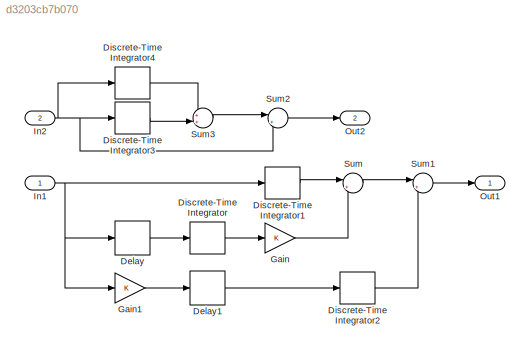
MODEL slx_d3203cb7b070
KIND model
CONFIG AbsTol = auto
CONFIG EnableMultiTasking = off
CONFIG FixedStep = auto
CONFIG MaxStep = auto
CONFIG MinStep = auto
CONFIG RelTol = 1e-3
CONFIG SampleTimeConstraint = Unconstrained
CONFIG SolverName = VariableStepAuto
CONFIG StartTime = 0.0
CONFIG StopTime = 10.0
BLOCK [Delay] Delay
  AttributesFormatString = %<BlockType>
  DelayLength = 1
  InitialCondition = 0
  InputPortMap = u0
BLOCK [Delay] Delay1
  AttributesFormatString = %<BlockType>
  DelayLength = 1
  InitialCondition = 0
  InputPortMap = u0
BLOCK [DiscreteIntegrator] Discrete-Time Integrator
  AttributesFormatString = %<BlockType>
  ICPrevOutput = DiscIntNeverNeededParam
  ICPrevScaledInput = DiscIntNeverNeededParam
  InitialConditionSetting = Auto
  SampleTime = -1
BLOCK [DiscreteIntegrator] Discrete-Time Integrator1
  AttributesFormatString = %<BlockType>
  ICPrevOutput = DiscIntNeverNeededParam
  ICPrevScaledInput = DiscIntNeverNeededParam
  InitialConditionSetting = Auto
  SampleTime = -1
BLOCK [DiscreteIntegrator] Discrete-Time Integrator2
  AttributesFormatString = %<BlockType>
  ICPrevOutput = DiscIntNeverNeededParam
  ICPrevScaledInput = DiscIntNeverNeededParam
  InitialConditionSetting = Auto
  SampleTime = -1
BLOCK [DiscreteIntegrator] Discrete-Time Integrator3
  AttributesFormatString = %<BlockType>
  ICPrevOutput = DiscIntNeverNeededParam
  ICPrevScaledInput = DiscIntNeverNeededParam
  InitialConditionSetting = Auto
  SampleTime = -1
BLOCK [DiscreteIntegrator] Discrete-Time Integrator4
  ICPrevOutput = DiscIntNeverNeededParam
  ICPrevScaledInput = DiscIntNeverNeededParam
  InitialConditionSetting = Auto
  SampleTime = -1
BLOCK [Gain] Gain
BLOCK [Gain] Gain1
BLOCK [Inport] In1
  AttributesFormatString = %<BlockType>
  SampleTime = 2
BLOCK [Inport] In2
  AttributesFormatString = %<BlockType>
  Port = 2
  SampleTime = 2
BLOCK [Outport] Out1
  SampleTime = 10
BLOCK [Outport] Out2
  Port = 2
  SampleTime = 10
BLOCK [Sum] Sum
  Inputs = |++
BLOCK [Sum] Sum1
  Inputs = |++
BLOCK [Sum] Sum2
  Inputs = |++
BLOCK [Sum] Sum3
  Inputs = ++|
LINE Delay1:1 -> Discrete-Time Integrator2:1
LINE Delay:1 -> Discrete-Time Integrator:1
LINE Discrete-Time Integrator1:1 -> Sum:1
LINE Discrete-Time Integrator2:1 -> Sum1:2
LINE Discrete-Time Integrator3:1 -> Sum3:2
LINE Discrete-Time Integrator4:1 -> Sum3:1
LINE Discrete-Time Integrator:1 -> Gain:1
LINE Gain1:1 -> Delay1:1
LINE Gain:1 -> Sum:2
NET In1:1 -> Delay:1, Discrete-Time Integrator1:1, Gain1:1
NET In2:1 -> Discrete-Time Integrator3:1, Discrete-Time Integrator4:1, Sum2:2
LINE Sum1:1 -> Out1:1
LINE Sum2:1 -> Out2:1
LINE Sum3:1 -> Sum2:1
LINE Sum:1 -> Sum1:1
note: NET lines group one-source signal fan-out (src -> all destinations, sorted); 1:1 wires keep LINE
